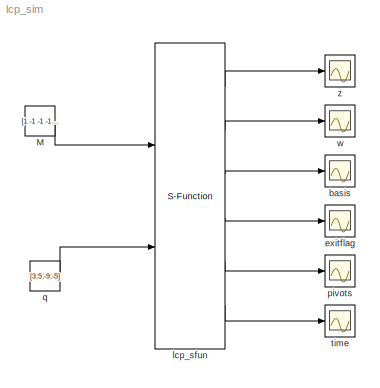
MODEL lcp_sim
KIND model
BLOCK [Constant] M
  SID = 1
  Value = [1 -1 -1 -1;-1 1 -1 -1; 1 1 2 0;1 1 0 2]
BLOCK [Scope] basis
  DataFormat = StructureWithTime
  Floating = off
  NumInputPorts = 1
  Ports = [1]
  SID = 7
  SampleTime = 0
  SaveName = ScopeData2
BLOCK [Scope] exitflag
  DataFormat = StructureWithTime
  Floating = off
  NumInputPorts = 1
  Ports = [1]
  SID = 8
  SampleTime = 0
  SaveName = ScopeData3
BLOCK [S-Function] lcp_sfun
  EnableBusSupport = off
  FunctionName = lcp_sfun
  MaskCallbackString = |
  MaskDescription = Linear-complementarity problem (LCP) solver.
  MaskDisplay = disp('LCP solver');
  MaskEnableString = on,on
  MaskHelp = <pre>\nLCP: Matlab interface to lexicographic Lemke algorithm \n=======================================================\n\n\nSYNTAX\n------\n   \n    [z, w, basis, exitflag, pivots, time] = lcp(M, q, options)\n  \n\nDESCRIPTION\n-----------\n   The lexicographic Lemke algorithm solves linear-complementarity problem (LCP) of the form \n                                          find   w, z          ...<+9701ch>
  MaskIconFrame = on
  MaskIconOpaque = on
  MaskIconRotate = none
  MaskIconUnits = autoscale
  MaskInitialization = % find where LCP solver is installed\np = which('lcp');\n\nif isempty(p)\n    error('Could not find path to LCP solver. Add LCP solver to Matlab path.');\nend\n
  MaskPortRotate = default
  MaskPromptString = Number of variables in LCP|Sampling time
  MaskStyleString = edit,edit
  MaskToolTipString = on,on
  MaskTunableValueString = off,off
  MaskType = LCP solver
  MaskValueString = 4|1
  MaskVariables = n=@1;ts=@2;
  MaskVisibilityString = on,on
  Parameters = n,ts
  Ports = [2, 6]
  SID = 44
BLOCK [Scope] pivots
  DataFormat = StructureWithTime
  Floating = off
  NumInputPorts = 1
  Ports = [1]
  SID = 9
  SampleTime = 0
  SaveName = ScopeData4
BLOCK [Constant] q
  SID = 5
  Value = [3;5;-9;-5]
BLOCK [Scope] time
  DataFormat = StructureWithTime
  Floating = off
  NumInputPorts = 1
  Ports = [1]
  SID = 10
  SampleTime = 0
  SaveName = ScopeData5
BLOCK [Scope] w
  DataFormat = StructureWithTime
  Floating = off
  NumInputPorts = 1
  Ports = [1]
  SID = 6
  SampleTime = 0
  SaveName = ScopeData1
BLOCK [Scope] z
  DataFormat = StructureWithTime
  Floating = off
  NumInputPorts = 1
  Ports = [1]
  SID = 3
  SampleTime = 0
LINE M:1 -> lcp_sfun:1
LINE lcp_sfun:1 -> z:1
LINE lcp_sfun:2 -> w:1
LINE lcp_sfun:3 -> basis:1
LINE lcp_sfun:4 -> exitflag:1
LINE lcp_sfun:5 -> pivots:1
LINE lcp_sfun:6 -> time:1
LINE q:1 -> lcp_sfun:2
